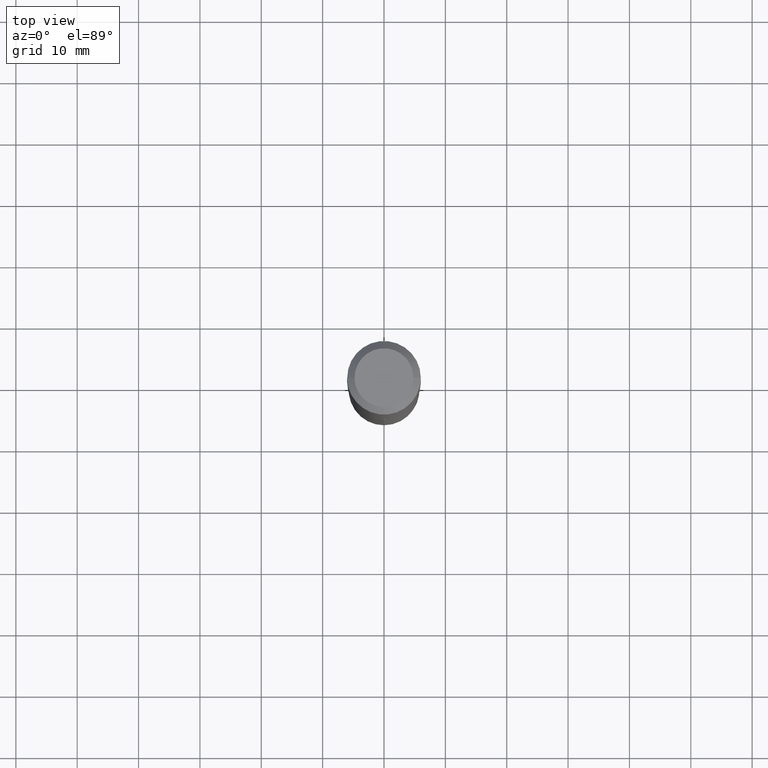
[diagram: clean part render]
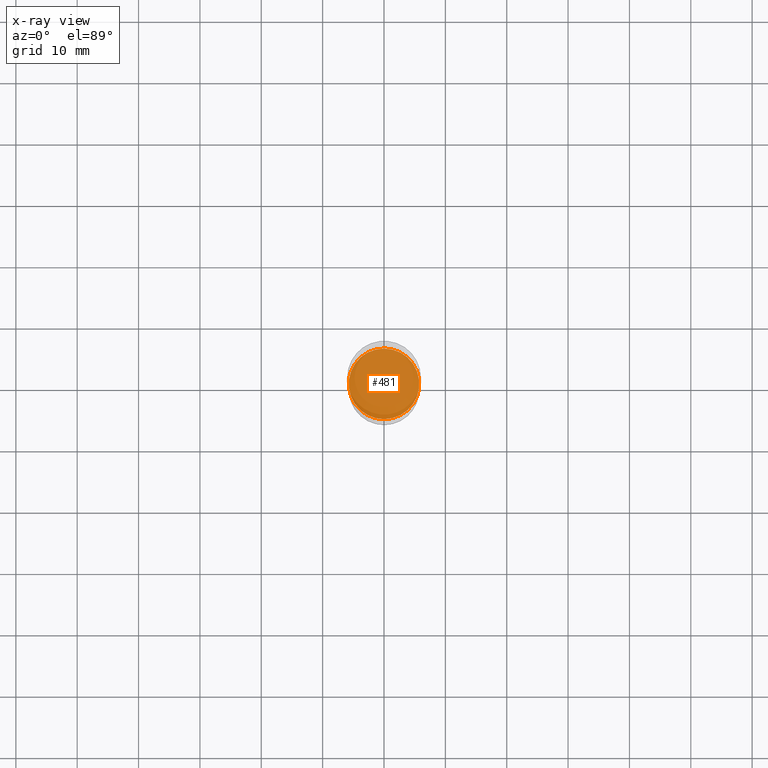
[diagram: x-ray — body ghosted, one internal face saturated and labeled with its STEP entity id]
A machine part, top view, then the same camera in x-ray: the body is ghosted and one INTERNAL B-rep face — a face not visible from any outside direction — is saturated and labeled: STEP entity #481.
In plain terms, the highlighted planar face has unit normal (0, -0, -1).
Its self-contained STEP definition (entity closure, byte-faithful):
#10 = DIRECTION ( 'NONE',  ( -6.982962677686265922E-15, -1.000000000000000000, 3.619939920933211627E-15 ) ) ;
#12 = CIRCLE ( 'NONE', #157, 0.2263999999999999624 ) ;
#13 = DIRECTION ( 'NONE',  ( 2.445496607423183492E-29, -3.491441525887913744E-15, -1.000000000000000000 ) ) ;
#38 = AXIS2_PLACEMENT_3D ( 'NONE', #173, #13, #197 ) ;
#48 = EDGE_CURVE ( 'NONE', #381, #187, #368, .T. ) ;
#65 = CARTESIAN_POINT ( 'NONE',  ( 1.608668753760977191E-15, 0.2263999999999919133, -2.303200000000000358 ) ) ;
#124 = CARTESIAN_POINT ( 'NONE',  ( 5.632403754405604963E-29, -8.041579819623531161E-15, -2.303199999999999470 ) ) ;
#157 = AXIS2_PLACEMENT_3D ( 'NONE', #124, #232, #10 ) ;
#162 = PLANE ( 'NONE',  #38 ) ;
#173 = CARTESIAN_POINT ( 'NONE',  ( 5.632403754405604963E-29, -8.041579819623531161E-15, -2.303199999999999470 ) ) ;
#186 = DIRECTION ( 'NONE',  ( -6.982962677686265922E-15, -1.000000000000000000, 3.619939920933211627E-15 ) ) ;
#187 = VERTEX_POINT ( 'NONE', #305 ) ;
#197 = DIRECTION ( 'NONE',  ( 6.982962677686265922E-15, 1.000000000000000000, -3.491441525887913744E-15 ) ) ;
#228 = DIRECTION ( 'NONE',  ( -2.445496607423183772E-29, 3.491441525887913744E-15, 1.000000000000000000 ) ) ;
#232 = DIRECTION ( 'NONE',  ( -2.445496607423183772E-29, 3.491441525887913744E-15, 1.000000000000000000 ) ) ;
#279 = FACE_OUTER_BOUND ( 'NONE', #290, .T. ) ;
#290 = EDGE_LOOP ( 'NONE', ( #386, #474 ) ) ;
#305 = CARTESIAN_POINT ( 'NONE',  ( -1.580942750228114224E-15, -0.2264000000000080115, -2.303199999999998582 ) ) ;
#361 = AXIS2_PLACEMENT_3D ( 'NONE', #412, #228, #186 ) ;
#368 = CIRCLE ( 'NONE', #361, 0.2263999999999999624 ) ;
#381 = VERTEX_POINT ( 'NONE', #65 ) ;
#386 = ORIENTED_EDGE ( 'NONE', *, *, #485, .T. ) ;
#412 = CARTESIAN_POINT ( 'NONE',  ( 5.632403754405604963E-29, -8.041579819623531161E-15, -2.303199999999999470 ) ) ;
#474 = ORIENTED_EDGE ( 'NONE', *, *, #48, .T. ) ;
#481 = ADVANCED_FACE ( 'NONE', ( #279 ), #162, .F. ) ;
#485 = EDGE_CURVE ( 'NONE', #187, #381, #12, .T. ) ;